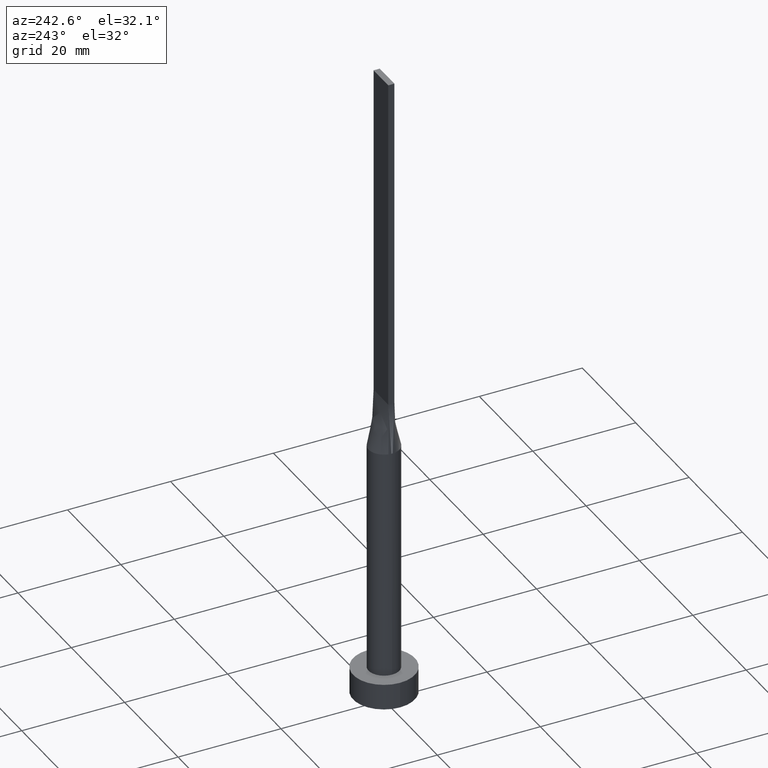
[diagram: clean part render]
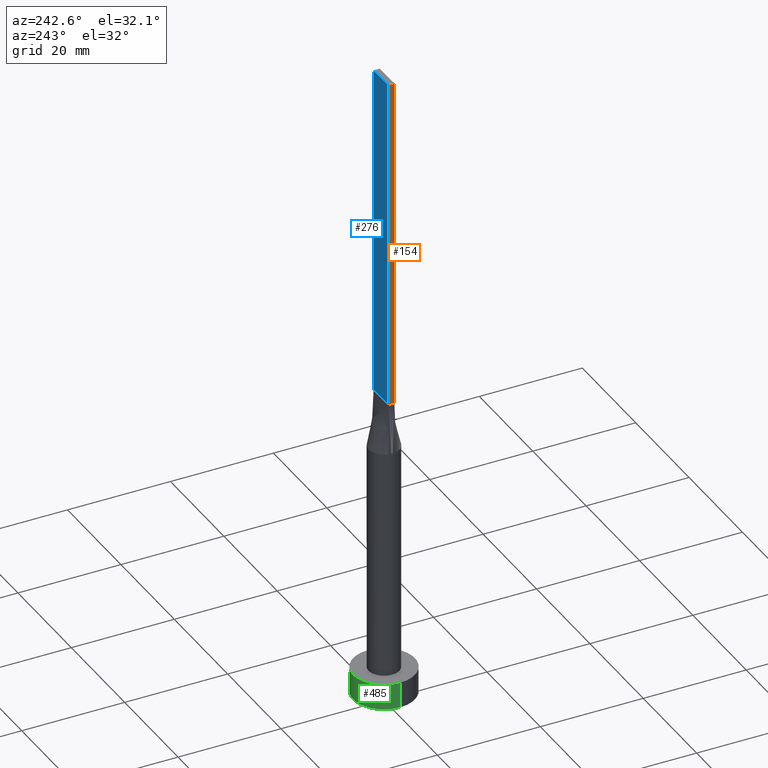
[diagram: same view with three faces highlighted in distinct colors, each labeled with its STEP entity id]
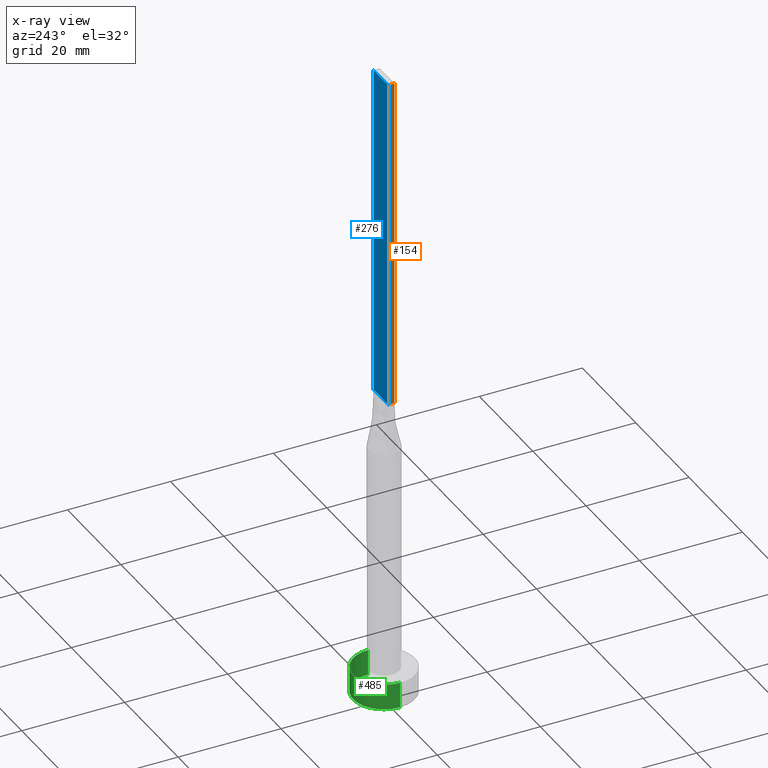
[diagram: x-ray of the same camera — body ghosted, the three highlighted faces saturated]
A machine part, auxiliary view with three faces highlighted in distinct colors.
The next image is the same camera in x-ray (body ghosted, the three faces saturated) — at least one of them is partly hidden behind the body in this view.
Their STEP definitions:

[orange] entity #154 — the highlighted planar face has unit normal (1, 0, -0).
#16 = EDGE_LOOP ( 'NONE', ( #466, #152, #323, #464 ) ) ;
#18 = VERTEX_POINT ( 'NONE', #77 ) ;
#31 = CARTESIAN_POINT ( 'NONE',  ( -2.750000000000000000, -0.5999999999999994227, 125.0000000000000000 ) ) ;
#53 = EDGE_CURVE ( 'NONE', #348, #18, #540, .T. ) ;
#57 = CARTESIAN_POINT ( 'NONE',  ( -2.750000000000000000, 0.6000000000000001998, 125.0000000000000000 ) ) ;
#74 = CARTESIAN_POINT ( 'NONE',  ( -2.750000000000000000, 0.6000000000000001998, 125.0000000000000000 ) ) ;
#77 = CARTESIAN_POINT ( 'NONE',  ( -2.750000000000000000, -0.5999999999999994227, 60.00000000000000000 ) ) ;
#92 = CARTESIAN_POINT ( 'NONE',  ( -2.750000000000000000, 0.6000000000000001998, 60.00000000000000000 ) ) ;
#104 = VECTOR ( 'NONE', #157, 1000.000000000000000 ) ;
#109 = DIRECTION ( 'NONE',  ( 0.000000000000000000, -1.000000000000000000, 0.000000000000000000 ) ) ;
#111 = DIRECTION ( 'NONE',  ( -0.000000000000000000, 0.000000000000000000, -1.000000000000000000 ) ) ;
#114 = CARTESIAN_POINT ( 'NONE',  ( -2.750000000000000000, 0.6000000000000001998, 125.0000000000000000 ) ) ;
#124 = CARTESIAN_POINT ( 'NONE',  ( -2.750000000000000000, -0.5999999999999994227, 125.0000000000000000 ) ) ;
#138 = VERTEX_POINT ( 'NONE', #31 ) ;
#152 = ORIENTED_EDGE ( 'NONE', *, *, #425, .F. ) ;
#154 = ADVANCED_FACE ( 'NONE', ( #519 ), #463, .F. ) ;
#157 = DIRECTION ( 'NONE',  ( -0.000000000000000000, -0.000000000000000000, -1.000000000000000000 ) ) ;
#169 = DIRECTION ( 'NONE',  ( 0.000000000000000000, -1.000000000000000000, 0.000000000000000000 ) ) ;
#201 = LINE ( 'NONE', #124, #104 ) ;
#232 = DIRECTION ( 'NONE',  ( 1.000000000000000000, 0.000000000000000000, -0.000000000000000000 ) ) ;
#243 = VERTEX_POINT ( 'NONE', #114 ) ;
#299 = EDGE_CURVE ( 'NONE', #243, #348, #481, .T. ) ;
#323 = ORIENTED_EDGE ( 'NONE', *, *, #344, .F. ) ;
#344 = EDGE_CURVE ( 'NONE', #243, #138, #574, .T. ) ;
#348 = VERTEX_POINT ( 'NONE', #354 ) ;
#354 = CARTESIAN_POINT ( 'NONE',  ( -2.750000000000000000, 0.6000000000000001998, 60.00000000000000000 ) ) ;
#397 = VECTOR ( 'NONE', #443, 1000.000000000000000 ) ;
#425 = EDGE_CURVE ( 'NONE', #138, #18, #201, .T. ) ;
#443 = DIRECTION ( 'NONE',  ( -0.000000000000000000, -0.000000000000000000, -1.000000000000000000 ) ) ;
#460 = AXIS2_PLACEMENT_3D ( 'NONE', #57, #232, #111 ) ;
#463 = PLANE ( 'NONE',  #460 ) ;
#464 = ORIENTED_EDGE ( 'NONE', *, *, #299, .T. ) ;
#466 = ORIENTED_EDGE ( 'NONE', *, *, #53, .T. ) ;
#481 = LINE ( 'NONE', #74, #397 ) ;
#486 = VECTOR ( 'NONE', #109, 1000.000000000000000 ) ;
#513 = CARTESIAN_POINT ( 'NONE',  ( -2.750000000000000000, 0.6000000000000001998, 125.0000000000000000 ) ) ;
#519 = FACE_OUTER_BOUND ( 'NONE', #16, .T. ) ;
#532 = VECTOR ( 'NONE', #169, 1000.000000000000000 ) ;
#540 = LINE ( 'NONE', #92, #532 ) ;
#574 = LINE ( 'NONE', #513, #486 ) ;

[blue] entity #276 — the highlighted planar face has unit normal (0, -1, 0).
#33 = LINE ( 'NONE', #303, #87 ) ;
#41 = LINE ( 'NONE', #541, #557 ) ;
#50 = CARTESIAN_POINT ( 'NONE',  ( 2.750000000000000000, 0.6000000000000001998, 125.0000000000000000 ) ) ;
#58 = VERTEX_POINT ( 'NONE', #318 ) ;
#74 = CARTESIAN_POINT ( 'NONE',  ( -2.750000000000000000, 0.6000000000000001998, 125.0000000000000000 ) ) ;
#82 = EDGE_CURVE ( 'NONE', #191, #58, #273, .T. ) ;
#87 = VECTOR ( 'NONE', #517, 1000.000000000000000 ) ;
#114 = CARTESIAN_POINT ( 'NONE',  ( -2.750000000000000000, 0.6000000000000001998, 125.0000000000000000 ) ) ;
#191 = VERTEX_POINT ( 'NONE', #236 ) ;
#203 = CARTESIAN_POINT ( 'NONE',  ( 2.750000000000000000, 0.6000000000000001998, 125.0000000000000000 ) ) ;
#207 = DIRECTION ( 'NONE',  ( -1.000000000000000000, -0.000000000000000000, -0.000000000000000000 ) ) ;
#220 = DIRECTION ( 'NONE',  ( -0.000000000000000000, -0.000000000000000000, -1.000000000000000000 ) ) ;
#224 = ORIENTED_EDGE ( 'NONE', *, *, #299, .F. ) ;
#227 = ORIENTED_EDGE ( 'NONE', *, *, #337, .F. ) ;
#235 = VECTOR ( 'NONE', #220, 1000.000000000000000 ) ;
#236 = CARTESIAN_POINT ( 'NONE',  ( 2.750000000000000000, 0.6000000000000001998, 125.0000000000000000 ) ) ;
#243 = VERTEX_POINT ( 'NONE', #114 ) ;
#250 = PLANE ( 'NONE',  #267 ) ;
#267 = AXIS2_PLACEMENT_3D ( 'NONE', #203, #390, #528 ) ;
#273 = LINE ( 'NONE', #50, #235 ) ;
#276 = ADVANCED_FACE ( 'NONE', ( #471 ), #250, .F. ) ;
#296 = EDGE_LOOP ( 'NONE', ( #413, #224, #227, #375 ) ) ;
#299 = EDGE_CURVE ( 'NONE', #243, #348, #481, .T. ) ;
#303 = CARTESIAN_POINT ( 'NONE',  ( 2.750000000000000000, 0.6000000000000001998, 125.0000000000000000 ) ) ;
#318 = CARTESIAN_POINT ( 'NONE',  ( 2.750000000000000000, 0.6000000000000001998, 60.00000000000000000 ) ) ;
#337 = EDGE_CURVE ( 'NONE', #191, #243, #33, .T. ) ;
#348 = VERTEX_POINT ( 'NONE', #354 ) ;
#354 = CARTESIAN_POINT ( 'NONE',  ( -2.750000000000000000, 0.6000000000000001998, 60.00000000000000000 ) ) ;
#375 = ORIENTED_EDGE ( 'NONE', *, *, #82, .T. ) ;
#390 = DIRECTION ( 'NONE',  ( 0.000000000000000000, -1.000000000000000000, 0.000000000000000000 ) ) ;
#397 = VECTOR ( 'NONE', #443, 1000.000000000000000 ) ;
#413 = ORIENTED_EDGE ( 'NONE', *, *, #549, .T. ) ;
#443 = DIRECTION ( 'NONE',  ( -0.000000000000000000, -0.000000000000000000, -1.000000000000000000 ) ) ;
#471 = FACE_OUTER_BOUND ( 'NONE', #296, .T. ) ;
#481 = LINE ( 'NONE', #74, #397 ) ;
#517 = DIRECTION ( 'NONE',  ( -1.000000000000000000, 0.000000000000000000, 0.000000000000000000 ) ) ;
#528 = DIRECTION ( 'NONE',  ( 0.000000000000000000, -0.000000000000000000, -1.000000000000000000 ) ) ;
#541 = CARTESIAN_POINT ( 'NONE',  ( -2.750000000000000000, 0.6000000000000001998, 60.00000000000000000 ) ) ;
#549 = EDGE_CURVE ( 'NONE', #58, #348, #41, .T. ) ;
#557 = VECTOR ( 'NONE', #207, 1000.000000000000000 ) ;

[green] entity #485 — the highlighted cylindrical surface (edge-blend (fillet) strip) has radius 6 mm, axis along (-0, -0, -1).
#14 = EDGE_CURVE ( 'NONE', #502, #404, #129, .T. ) ;
#38 = AXIS2_PLACEMENT_3D ( 'NONE', #245, #526, #441 ) ;
#81 = CYLINDRICAL_SURFACE ( 'NONE', #573, 6.000000000000000888 ) ;
#125 = DIRECTION ( 'NONE',  ( -0.000000000000000000, -0.000000000000000000, -1.000000000000000000 ) ) ;
#129 = CIRCLE ( 'NONE', #568, 6.000000000000000888 ) ;
#141 = CARTESIAN_POINT ( 'NONE',  ( -6.000000000000000888, 0.000000000000000000, 5.000000000000000000 ) ) ;
#150 = CARTESIAN_POINT ( 'NONE',  ( -6.000000000000000888, 0.000000000000000000, 5.000000000000000000 ) ) ;
#160 = DIRECTION ( 'NONE',  ( -0.000000000000000000, -0.000000000000000000, -1.000000000000000000 ) ) ;
#185 = DIRECTION ( 'NONE',  ( 1.000000000000000000, 0.000000000000000000, 0.000000000000000000 ) ) ;
#196 = ORIENTED_EDGE ( 'NONE', *, *, #522, .T. ) ;
#214 = LINE ( 'NONE', #491, #420 ) ;
#230 = ORIENTED_EDGE ( 'NONE', *, *, #363, .F. ) ;
#238 = CARTESIAN_POINT ( 'NONE',  ( -6.000000000000000888, 0.000000000000000000, 0.000000000000000000 ) ) ;
#245 = CARTESIAN_POINT ( 'NONE',  ( 0.000000000000000000, 0.000000000000000000, 5.000000000000000000 ) ) ;
#295 = CARTESIAN_POINT ( 'NONE',  ( 0.000000000000000000, 0.000000000000000000, 0.000000000000000000 ) ) ;
#326 = EDGE_CURVE ( 'NONE', #509, #404, #533, .T. ) ;
#332 = CARTESIAN_POINT ( 'NONE',  ( 6.000000000000000888, 7.347880794884120722E-16, 0.000000000000000000 ) ) ;
#341 = DIRECTION ( 'NONE',  ( -0.000000000000000000, -0.000000000000000000, -1.000000000000000000 ) ) ;
#363 = EDGE_CURVE ( 'NONE', #465, #509, #546, .T. ) ;
#372 = VECTOR ( 'NONE', #341, 1000.000000000000000 ) ;
#404 = VERTEX_POINT ( 'NONE', #238 ) ;
#420 = VECTOR ( 'NONE', #125, 1000.000000000000000 ) ;
#421 = DIRECTION ( 'NONE',  ( 0.000000000000000000, 0.000000000000000000, 1.000000000000000000 ) ) ;
#436 = CARTESIAN_POINT ( 'NONE',  ( 6.000000000000000888, 7.347880794884120722E-16, 5.000000000000000000 ) ) ;
#441 = DIRECTION ( 'NONE',  ( 1.000000000000000000, 0.000000000000000000, 0.000000000000000000 ) ) ;
#465 = VERTEX_POINT ( 'NONE', #436 ) ;
#473 = ORIENTED_EDGE ( 'NONE', *, *, #326, .F. ) ;
#479 = CARTESIAN_POINT ( 'NONE',  ( 0.000000000000000000, 0.000000000000000000, 5.000000000000000000 ) ) ;
#485 = ADVANCED_FACE ( 'NONE', ( #570 ), #81, .T. ) ;
#491 = CARTESIAN_POINT ( 'NONE',  ( 6.000000000000000888, 7.347880794884120722E-16, 5.000000000000000000 ) ) ;
#502 = VERTEX_POINT ( 'NONE', #332 ) ;
#505 = ORIENTED_EDGE ( 'NONE', *, *, #14, .T. ) ;
#509 = VERTEX_POINT ( 'NONE', #141 ) ;
#522 = EDGE_CURVE ( 'NONE', #465, #502, #214, .T. ) ;
#526 = DIRECTION ( 'NONE',  ( 0.000000000000000000, 0.000000000000000000, 1.000000000000000000 ) ) ;
#533 = LINE ( 'NONE', #150, #372 ) ;
#546 = CIRCLE ( 'NONE', #38, 6.000000000000000888 ) ;
#562 = EDGE_LOOP ( 'NONE', ( #230, #196, #505, #473 ) ) ;
#568 = AXIS2_PLACEMENT_3D ( 'NONE', #295, #421, #185 ) ;
#570 = FACE_OUTER_BOUND ( 'NONE', #562, .T. ) ;
#573 = AXIS2_PLACEMENT_3D ( 'NONE', #479, #160, #577 ) ;
#577 = DIRECTION ( 'NONE',  ( -1.000000000000000000, 0.000000000000000000, 0.000000000000000000 ) ) ;